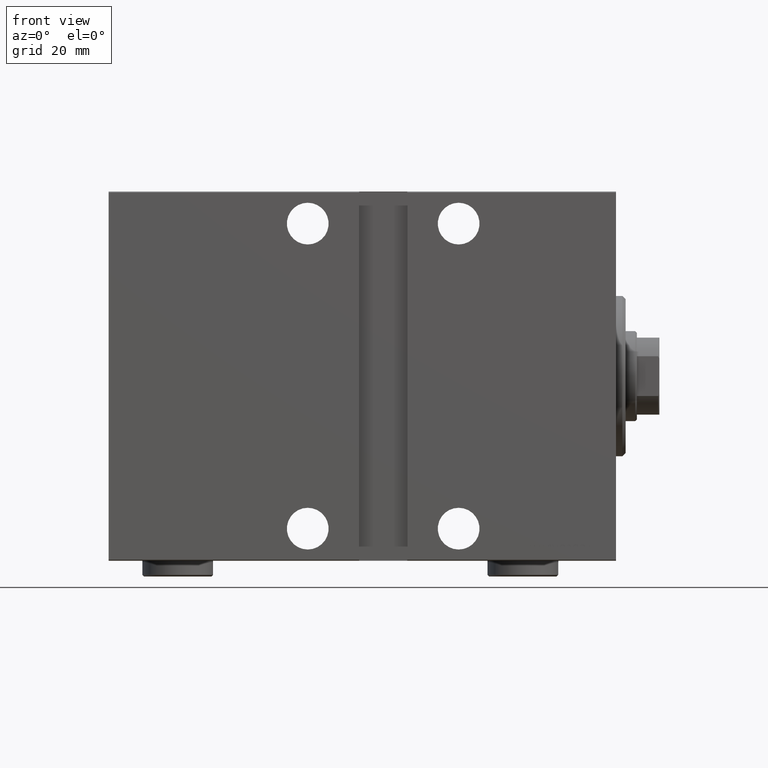
[diagram: clean part render]
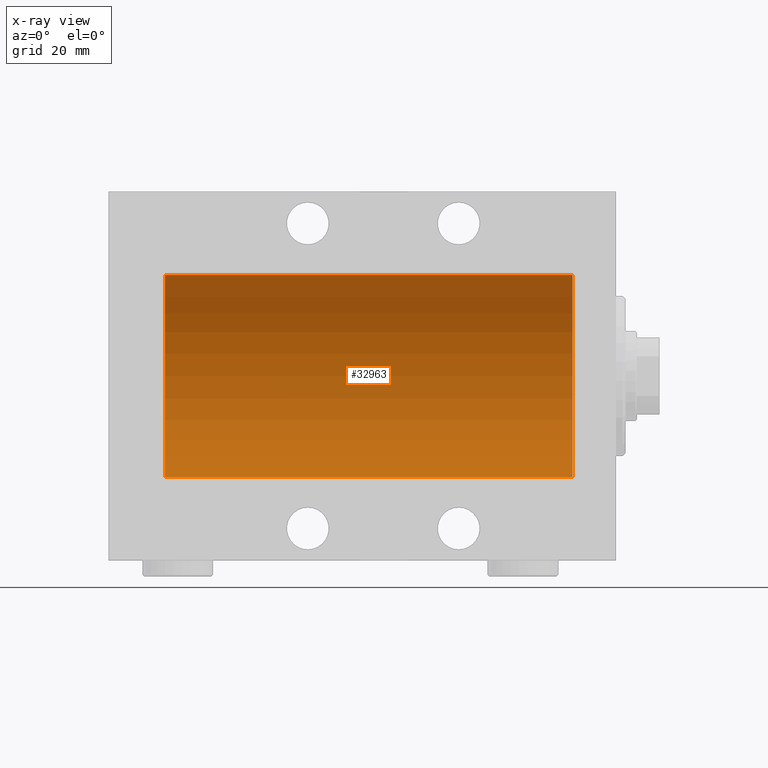
[diagram: x-ray — body ghosted, one internal face saturated and labeled with its STEP entity id]
A machine part, front view, then the same camera in x-ray: the body is ghosted and one INTERNAL B-rep face — a face not visible from any outside direction — is saturated and labeled: STEP entity #32963.
In plain terms, the highlighted cylindrical surface (partial cylindrical patch) has radius 31.5 mm, axis along (1, 0, -0).
Its self-contained STEP definition (entity closure, byte-faithful):
#962 = CARTESIAN_POINT ( 'NONE',  ( 140.5000000000000000, 0.000000000000000000, 31.50000000000000000 ) ) ;
#1323 = CARTESIAN_POINT ( 'NONE',  ( 140.5000000000000000, 3.857637417314162689E-15, -31.50000000000000000 ) ) ;
#4609 = CARTESIAN_POINT ( 'NONE',  ( 140.5000000000000000, 0.000000000000000000, 0.000000000000000000 ) ) ;
#5962 = AXIS2_PLACEMENT_3D ( 'NONE', #8865, #12856, #12640 ) ;
#6227 = VERTEX_POINT ( 'NONE', #962 ) ;
#8865 = CARTESIAN_POINT ( 'NONE',  ( 13.50000000000001243, 0.000000000000000000, 0.000000000000000000 ) ) ;
#10249 = VERTEX_POINT ( 'NONE', #23987 ) ;
#10442 = LINE ( 'NONE', #37227, #38650 ) ;
#11120 = EDGE_CURVE ( 'NONE', #38336, #10249, #31501, .T. ) ;
#12640 = DIRECTION ( 'NONE',  ( 0.000000000000000000, 0.000000000000000000, 1.000000000000000000 ) ) ;
#12856 = DIRECTION ( 'NONE',  ( -1.000000000000000000, 0.000000000000000000, 0.000000000000000000 ) ) ;
#13495 = CARTESIAN_POINT ( 'NONE',  ( 140.5000000000000000, 0.000000000000000000, 0.000000000000000000 ) ) ;
#14520 = VERTEX_POINT ( 'NONE', #20799 ) ;
#16382 = ORIENTED_EDGE ( 'NONE', *, *, #23927, .F. ) ;
#17048 = DIRECTION ( 'NONE',  ( -1.000000000000000000, -0.000000000000000000, -0.000000000000000000 ) ) ;
#17259 = CYLINDRICAL_SURFACE ( 'NONE', #27252, 31.50000000000000000 ) ;
#17954 = EDGE_LOOP ( 'NONE', ( #25752, #40205, #32703, #16382 ) ) ;
#18783 = CIRCLE ( 'NONE', #25128, 31.50000000000000000 ) ;
#20799 = CARTESIAN_POINT ( 'NONE',  ( 13.50000000000001243, 0.000000000000000000, 31.50000000000000000 ) ) ;
#22253 = CIRCLE ( 'NONE', #5962, 31.50000000000000000 ) ;
#23927 = EDGE_CURVE ( 'NONE', #6227, #14520, #10442, .T. ) ;
#23987 = CARTESIAN_POINT ( 'NONE',  ( 13.50000000000001243, 3.857637417314162689E-15, -31.50000000000000000 ) ) ;
#24318 = DIRECTION ( 'NONE',  ( 0.000000000000000000, 0.000000000000000000, 1.000000000000000000 ) ) ;
#24637 = CARTESIAN_POINT ( 'NONE',  ( 140.5000000000000000, 3.857637417314162689E-15, -31.50000000000000000 ) ) ;
#25128 = AXIS2_PLACEMENT_3D ( 'NONE', #4609, #38248, #24318 ) ;
#25752 = ORIENTED_EDGE ( 'NONE', *, *, #32283, .F. ) ;
#27252 = AXIS2_PLACEMENT_3D ( 'NONE', #13495, #17048, #40484 ) ;
#30017 = VECTOR ( 'NONE', #38135, 1000.000000000000000 ) ;
#30472 = EDGE_CURVE ( 'NONE', #10249, #14520, #22253, .T. ) ;
#31501 = LINE ( 'NONE', #24637, #30017 ) ;
#32283 = EDGE_CURVE ( 'NONE', #38336, #6227, #18783, .T. ) ;
#32703 = ORIENTED_EDGE ( 'NONE', *, *, #30472, .T. ) ;
#32963 = ADVANCED_FACE ( 'NONE', ( #40921 ), #17259, .F. ) ;
#37006 = DIRECTION ( 'NONE',  ( -1.000000000000000000, -0.000000000000000000, -0.000000000000000000 ) ) ;
#37227 = CARTESIAN_POINT ( 'NONE',  ( 140.5000000000000000, 0.000000000000000000, 31.50000000000000000 ) ) ;
#38135 = DIRECTION ( 'NONE',  ( -1.000000000000000000, -0.000000000000000000, -0.000000000000000000 ) ) ;
#38248 = DIRECTION ( 'NONE',  ( -1.000000000000000000, 0.000000000000000000, 0.000000000000000000 ) ) ;
#38336 = VERTEX_POINT ( 'NONE', #1323 ) ;
#38650 = VECTOR ( 'NONE', #37006, 1000.000000000000000 ) ;
#40205 = ORIENTED_EDGE ( 'NONE', *, *, #11120, .T. ) ;
#40484 = DIRECTION ( 'NONE',  ( 0.000000000000000000, 0.000000000000000000, 1.000000000000000000 ) ) ;
#40921 = FACE_OUTER_BOUND ( 'NONE', #17954, .T. ) ;